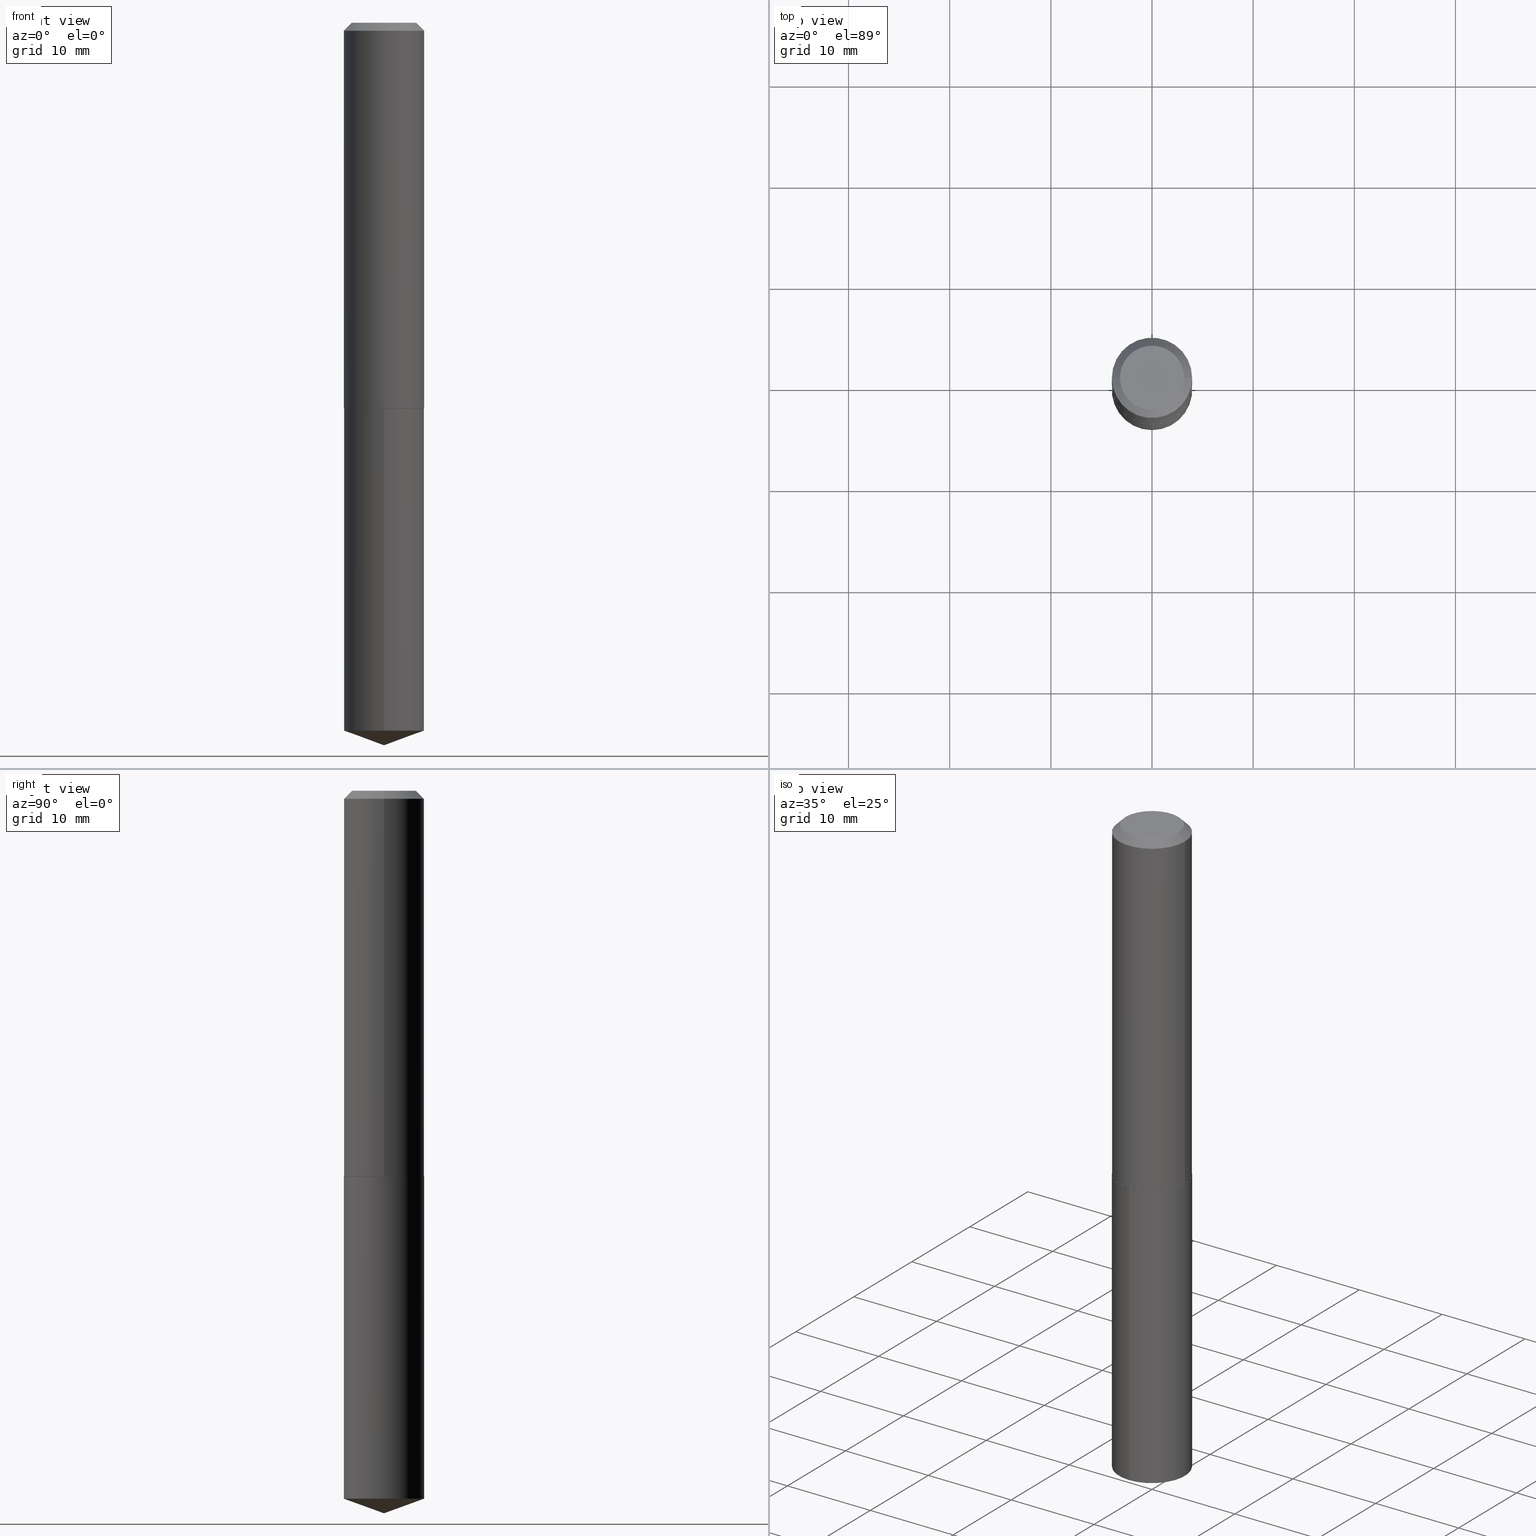
[diagram: canonical four-view strip — front | top / right | iso, engineering-drawing reading convention]
A machine part, canonical four-view strip (front | top / right | iso — engineering-drawing reading convention). The complete STEP part file that produces these views, byte-faithful:
ISO-10303-21;
HEADER;
FILE_DESCRIPTION (( 'STEP AP203' ),
    '1' );
FILE_NAME ('56152.STEP',
    '2024-04-22T20:45:19',
    ( '' ),
    ( '' ),
    'SwSTEP 2.0',
    'SolidWorks 2023',
    '' );
FILE_SCHEMA (( 'CONFIG_CONTROL_DESIGN' ));
ENDSEC;

DATA;
#1 = DIRECTION ( 'NONE',  ( 1.000000000000000000, -6.982962677686267499E-15, 0.000000000000000000 ) ) ;
#2 =( GEOMETRIC_REPRESENTATION_CONTEXT ( 3 ) GLOBAL_UNCERTAINTY_ASSIGNED_CONTEXT ( ( #150 ) ) GLOBAL_UNIT_ASSIGNED_CONTEXT ( ( #387, #148, #91 ) ) REPRESENTATION_CONTEXT ( 'NONE', 'WORKASPACE' ) );
#3 = DIRECTION ( 'NONE',  ( -2.445468806185136597E-29, 3.491481338843145583E-15, 1.000000000000000000 ) ) ;
#4 = ORIENTED_EDGE ( 'NONE', *, *, #236, .T. ) ;
#5 = CARTESIAN_POINT ( 'NONE',  ( 7.642090019328604414E-31, -1.091087918388490513E-16, -0.03125000000000021511 ) ) ;
#6 = ORIENTED_EDGE ( 'NONE', *, *, #54, .F. ) ;
#7 = LINE ( 'NONE', #43, #251 ) ;
#8 = ADVANCED_FACE ( 'NONE', ( #194 ), #287, .T. ) ;
#9 = ORIENTED_EDGE ( 'NONE', *, *, #152, .T. ) ;
#10 = DIRECTION ( 'NONE',  ( 1.000000000000000000, -6.982962677686266711E-15, 4.876176775795936353E-29 ) ) ;
#11 = AXIS2_PLACEMENT_3D ( 'NONE', #370, #97, #272 ) ;
#12 = APPROVAL_PERSON_ORGANIZATION ( #386, #88, #271 ) ;
#13 = DIRECTION ( 'NONE',  ( -2.445534105002635964E-29, 3.491387827219908740E-15, 1.000000000000000000 ) ) ;
#14 = CARTESIAN_POINT ( 'NONE',  ( -1.167985862904640673E-47, 1.667574263899824362E-33, 4.776122516674691392E-19 ) ) ;
#15 = ORIENTED_EDGE ( 'NONE', *, *, #58, .T. ) ;
#16 = CARTESIAN_POINT ( 'NONE',  ( -1.091087918388411726E-15, -0.1562500000000096034, -2.755629650895905058 ) ) ;
#17 = AXIS2_PLACEMENT_3D ( 'NONE', #169, #223, #73 ) ;
#18 = VERTEX_POINT ( 'NONE', #85 ) ;
#19 = DIRECTION ( 'NONE',  ( 0.7071067811866199593, -2.468850131083015945E-15, 0.7071067811864750752 ) ) ;
#20 = ORIENTED_EDGE ( 'NONE', *, *, #294, .T. ) ;
#21 = FACE_OUTER_BOUND ( 'NONE', #47, .T. ) ;
#22 = LINE ( 'NONE', #358, #219 ) ;
#23 = APPROVAL_ROLE ( '' ) ;
#24 = CIRCLE ( 'NONE', #255, 0.1562500000000000000 ) ;
#25 = LOCAL_TIME ( 16, 45, 19.00000000000000000, #359 ) ;
#26 = PERSON_AND_ORGANIZATION_ROLE ( 'design_supplier' ) ;
#27 = APPROVAL_DATE_TIME ( #300, #354 ) ;
#28 = DATE_AND_TIME ( #146, #327 ) ;
#29 = AXIS2_PLACEMENT_3D ( 'NONE', #5, #66, #375 ) ;
#30 = APPROVAL_STATUS ( 'not_yet_approved' ) ;
#31 = PRODUCT_DEFINITION_FORMATION_WITH_SPECIFIED_SOURCE ( 'ANY', '', #340, .NOT_KNOWN. ) ;
#32 = ADVANCED_BREP_SHAPE_REPRESENTATION ( '56152', ( #318, #321, #376 ), #2 ) ;
#33 = DIRECTION ( 'NONE',  ( -0.7071067811865451302, 2.468850131082231817E-15, -0.7071067811865499042 ) ) ;
#34 = EDGE_CURVE ( 'NONE', #310, #71, #329, .T. ) ;
#35 = CARTESIAN_POINT ( 'NONE',  ( -2.335971725809281346E-47, 3.335148527799648725E-33, 9.552245033349382783E-19 ) ) ;
#36 = CC_DESIGN_PERSON_AND_ORGANIZATION_ASSIGNMENT ( #389, #26, ( #31 ) ) ;
#37 = AXIS2_PLACEMENT_3D ( 'NONE', #313, #245, #183 ) ;
#38 = CARTESIAN_POINT ( 'NONE',  ( -0.1250000000000000000, 9.274247306302067059E-16, 9.552245033286433763E-19 ) ) ;
#39 = ORIENTED_EDGE ( 'NONE', *, *, #213, .T. ) ;
#40 = ADVANCED_FACE ( 'NONE', ( #199 ), #388, .T. ) ;
#41 = CARTESIAN_POINT ( 'NONE',  ( -1.091087918388442491E-15, -0.1562500000000052180, -1.499999999999999556 ) ) ;
#42 = VERTEX_POINT ( 'NONE', #117 ) ;
#43 = CARTESIAN_POINT ( 'NONE',  ( -0.1562500000000001388, 1.110223024625157526E-15, -7.685836078523296765E-30 ) ) ;
#44 = PLANE ( 'NONE',  #108 ) ;
#45 = CC_DESIGN_APPROVAL ( #354, ( #230 ) ) ;
#46 = FACE_OUTER_BOUND ( 'NONE', #348, .T. ) ;
#47 = EDGE_LOOP ( 'NONE', ( #274, #278 ) ) ;
#48 = DIRECTION ( 'NONE',  ( -2.445468806185136597E-29, 3.491481338843145583E-15, 1.000000000000000000 ) ) ;
#49 = VERTEX_POINT ( 'NONE', #296 ) ;
#50 = FACE_OUTER_BOUND ( 'NONE', #319, .T. ) ;
#51 = CIRCLE ( 'NONE', #265, 0.1562500000000000000 ) ;
#52 = CONICAL_SURFACE ( 'NONE', #29, 0.1562500000000000000, 0.7853981633974449483 ) ;
#53 = EDGE_LOOP ( 'NONE', ( #192, #15, #170, #342 ) ) ;
#54 = EDGE_CURVE ( 'NONE', #71, #100, #22, .T. ) ;
#55 = CARTESIAN_POINT ( 'NONE',  ( 0.1250000000000000000, -1.019311926856046176E-15, 9.552245033415540403E-19 ) ) ;
#56 = CARTESIAN_POINT ( 'NONE',  ( 3.666980474874613215E-29, -5.235476267595297462E-15, -1.499500000000000277 ) ) ;
#57 = CC_DESIGN_PERSON_AND_ORGANIZATION_ASSIGNMENT ( #333, #173, ( #340 ) ) ;
#58 = EDGE_CURVE ( 'NONE', #365, #167, #311, .T. ) ;
#59 = AXIS2_PLACEMENT_3D ( 'NONE', #56, #263, #172 ) ;
#60 = PERSON_AND_ORGANIZATION ( #119, #390 ) ;
#61 = CC_DESIGN_PERSON_AND_ORGANIZATION_ASSIGNMENT ( #385, #151, ( #31 ) ) ;
#62 = CALENDAR_DATE ( 2024, 22, 4 ) ;
#63 = AXIS2_PLACEMENT_3D ( 'NONE', #322, #289, #196 ) ;
#64 = CONICAL_SURFACE ( 'NONE', #288, 108.1684023407326691, 1.221730476396029275 ) ;
#65 = DIRECTION ( 'NONE',  ( -6.982962677686266711E-15, -1.000000000000000000, 3.475157955500745458E-15 ) ) ;
#66 = DIRECTION ( 'NONE',  ( 2.445468806185136597E-29, -3.491481338843145583E-15, -1.000000000000000000 ) ) ;
#67 = DIRECTION ( 'NONE',  ( -2.445534105002635684E-29, 3.491387827219909134E-15, 1.000000000000000000 ) ) ;
#68 = ORIENTED_EDGE ( 'NONE', *, *, #332, .T. ) ;
#69 = CARTESIAN_POINT ( 'NONE',  ( 6.738888343796194828E-29, -9.621112086899066152E-15, -2.755629650895905947 ) ) ;
#70 = APPROVAL_PERSON_ORGANIZATION ( #269, #305, #23 ) ;
#71 = VERTEX_POINT ( 'NONE', #211 ) ;
#72 = DIRECTION ( 'NONE',  ( -2.445468806185136877E-29, 3.491481338843145188E-15, 1.000000000000000000 ) ) ;
#73 = DIRECTION ( 'NONE',  ( -6.982962677686265133E-15, -1.000000000000000000, 3.496765431890256920E-15 ) ) ;
#74 = DIRECTION ( 'NONE',  ( 1.000000000000000000, -6.982962677686265922E-15, 4.876176775795935793E-29 ) ) ;
#75 = AXIS2_PLACEMENT_3D ( 'NONE', #69, #132, #215 ) ;
#76 = ORIENTED_EDGE ( 'NONE', *, *, #188, .T. ) ;
#77 = CARTESIAN_POINT ( 'NONE',  ( 3.668203209277704895E-29, -5.237222008264718177E-15, -1.500000000000000222 ) ) ;
#78 = ORIENTED_EDGE ( 'NONE', *, *, #135, .T. ) ;
#79 = FACE_OUTER_BOUND ( 'NONE', #103, .T. ) ;
#80 = EDGE_CURVE ( 'NONE', #250, #109, #249, .T. ) ;
#81 = ORIENTED_EDGE ( 'NONE', *, *, #240, .T. ) ;
#82 = CARTESIAN_POINT ( 'NONE',  ( -8.940290355360066432E-28, 1.276365451385842910E-13, 36.55757874015748143 ) ) ;
#83 = AXIS2_PLACEMENT_3D ( 'NONE', #82, #112, #317 ) ;
#84 = CC_DESIGN_PERSON_AND_ORGANIZATION_ASSIGNMENT ( #298, #205, ( #230 ) ) ;
#85 = CARTESIAN_POINT ( 'NONE',  ( -0.1562500000000000000, -1.562069505091914769E-15, -0.03125000000000021511 ) ) ;
#86 = PERSON_AND_ORGANIZATION_ROLE ( 'classification_officer' ) ;
#87 = SHAPE_DEFINITION_REPRESENTATION ( #90, #32 ) ;
#88 = APPROVAL ( #30, 'UNSPECIFIED' ) ;
#89 = CIRCLE ( 'NONE', #101, 0.1250000000000000000 ) ;
#90 = PRODUCT_DEFINITION_SHAPE ( 'NONE', 'NONE',  #230 ) ;
#91 =( NAMED_UNIT ( * ) SI_UNIT ( $, .STERADIAN. ) SOLID_ANGLE_UNIT ( ) );
#92 = PERSON_AND_ORGANIZATION ( #119, #390 ) ;
#93 = EDGE_CURVE ( 'NONE', #18, #49, #51, .T. ) ;
#94 = ORIENTED_EDGE ( 'NONE', *, *, #363, .T. ) ;
#95 = CC_DESIGN_PERSON_AND_ORGANIZATION_ASSIGNMENT ( #92, #86, ( #154 ) ) ;
#96 = CIRCLE ( 'NONE', #75, 0.1562500000000000000 ) ;
#97 = DIRECTION ( 'NONE',  ( -2.445468806185136597E-29, 3.491481338843145583E-15, 1.000000000000000000 ) ) ;
#98 = CARTESIAN_POINT ( 'NONE',  ( 7.642090019328604414E-31, -1.091087918388490513E-16, -0.03125000000000021511 ) ) ;
#99 = DIRECTION ( 'NONE',  ( 1.000000000000000000, -6.982962677686265133E-15, 0.000000000000000000 ) ) ;
#100 = VERTEX_POINT ( 'NONE', #246 ) ;
#101 = AXIS2_PLACEMENT_3D ( 'NONE', #35, #273, #209 ) ;
#102 = DIRECTION ( 'NONE',  ( 1.000000000000000000, -6.982962677686264344E-15, 0.000000000000000000 ) ) ;
#103 = EDGE_LOOP ( 'NONE', ( #131, #123 ) ) ;
#104 = FACE_OUTER_BOUND ( 'NONE', #285, .T. ) ;
#105 = LINE ( 'NONE', #259, #297 ) ;
#106 = ADVANCED_FACE ( 'NONE', ( #104 ), #344, .T. ) ;
#107 = DIRECTION ( 'NONE',  ( -2.438088387897960049E-29, 3.491481338843145188E-15, 1.000000000000000000 ) ) ;
#108 = AXIS2_PLACEMENT_3D ( 'NONE', #163, #283, #253 ) ;
#109 = VERTEX_POINT ( 'NONE', #126 ) ;
#110 = CARTESIAN_POINT ( 'NONE',  ( 3.668203209277704895E-29, -5.237222008264718177E-15, -1.500000000000000222 ) ) ;
#111 = ORIENTED_EDGE ( 'NONE', *, *, #80, .F. ) ;
#112 = DIRECTION ( 'NONE',  ( -2.445534105002635964E-29, 3.491387827219908740E-15, 1.000000000000000000 ) ) ;
#113 = ORIENTED_EDGE ( 'NONE', *, *, #226, .F. ) ;
#114 = APPROVAL_DATE_TIME ( #28, #305 ) ;
#115 = CIRCLE ( 'NONE', #128, 0.1562500000000000000 ) ;
#116 = APPROVAL_PERSON_ORGANIZATION ( #60, #354, #201 ) ;
#117 = CARTESIAN_POINT ( 'NONE',  ( 0.1557500000000002494, -6.324818445314356710E-15, -1.500000000000000222 ) ) ;
#118 = CALENDAR_DATE ( 2024, 22, 4 ) ;
#119 = PERSON ( 'UNSPECIFIED', 'UNSPECIFIED', 'UNSPECIFIED', ('UNSPECIFIED'), ('UNSPECIFIED'), ('UNSPECIFIED') ) ;
#120 = CIRCLE ( 'NONE', #206, 0.1562500000000002498 ) ;
#121 = LOCAL_TIME ( 16, 45, 19.00000000000000000, #149 ) ;
#122 = SECURITY_CLASSIFICATION_LEVEL ( 'unclassified' ) ;
#123 = ORIENTED_EDGE ( 'NONE', *, *, #244, .T. ) ;
#124 = EDGE_CURVE ( 'NONE', #42, #365, #336, .T. ) ;
#125 = ADVANCED_FACE ( 'NONE', ( #181 ), #52, .T. ) ;
#126 = CARTESIAN_POINT ( 'NONE',  ( -1.091087918388442491E-15, -0.1562500000000052180, -1.499999999999999556 ) ) ;
#127 = AXIS2_PLACEMENT_3D ( 'NONE', #77, #286, #350 ) ;
#128 = AXIS2_PLACEMENT_3D ( 'NONE', #110, #191, #193 ) ;
#129 = DIRECTION ( 'NONE',  ( -2.445534105002635964E-29, 3.491387827219908740E-15, 1.000000000000000000 ) ) ;
#130 = CARTESIAN_POINT ( 'NONE',  ( 3.668203209277704895E-29, -5.237222008264718177E-15, -1.500000000000000222 ) ) ;
#131 = ORIENTED_EDGE ( 'NONE', *, *, #226, .T. ) ;
#132 = DIRECTION ( 'NONE',  ( -2.445534105002635964E-29, 3.491387827219908740E-15, 1.000000000000000000 ) ) ;
#133 = ORIENTED_EDGE ( 'NONE', *, *, #93, .T. ) ;
#134 = CARTESIAN_POINT ( 'NONE',  ( 3.666980474874613215E-29, -5.235476267595297462E-15, -1.499500000000000277 ) ) ;
#135 = EDGE_CURVE ( 'NONE', #365, #42, #270, .T. ) ;
#136 = CYLINDRICAL_SURFACE ( 'NONE', #374, 0.1562500000000001388 ) ;
#137 = CYLINDRICAL_SURFACE ( 'NONE', #316, 0.1562500000000000000 ) ;
#138 = ORIENTED_EDGE ( 'NONE', *, *, #360, .T. ) ;
#139 = FACE_OUTER_BOUND ( 'NONE', #222, .T. ) ;
#140 = APPLICATION_CONTEXT ( 'configuration controlled 3d designs of mechanical parts and assemblies' ) ;
#141 = EDGE_LOOP ( 'NONE', ( #345, #20, #355 ) ) ;
#142 = LINE ( 'NONE', #328, #325 ) ;
#143 = VERTEX_POINT ( 'NONE', #241 ) ;
#144 = CARTESIAN_POINT ( 'NONE',  ( 3.668203209277704895E-29, -5.237222008264718177E-15, -1.500000000000000222 ) ) ;
#145 = CARTESIAN_POINT ( 'NONE',  ( 6.878066388100565428E-29, -9.819528264055993774E-15, -2.812500000000000000 ) ) ;
#146 = CALENDAR_DATE ( 2024, 22, 4 ) ;
#147 = AXIS2_PLACEMENT_3D ( 'NONE', #130, #277, #1 ) ;
#148 =( NAMED_UNIT ( * ) PLANE_ANGLE_UNIT ( ) SI_UNIT ( $, .RADIAN. ) );
#149 = COORDINATED_UNIVERSAL_TIME_OFFSET ( 5, 0, .BEHIND. ) ;
#150 = UNCERTAINTY_MEASURE_WITH_UNIT (LENGTH_MEASURE( 1.000000000000000082E-05 ), #387, 'distance_accuracy_value', 'NONE');
#151 = PERSON_AND_ORGANIZATION_ROLE ( 'creator' ) ;
#152 = EDGE_CURVE ( 'NONE', #167, #18, #7, .T. ) ;
#153 = VECTOR ( 'NONE', #323, 39.37007874015748143 ) ;
#154 = SECURITY_CLASSIFICATION ( '', '', #122 ) ;
#155 = CARTESIAN_POINT ( 'NONE',  ( -0.1562500000000002498, -4.125253242970138555E-15, -1.499500000000000277 ) ) ;
#156 = FACE_OUTER_BOUND ( 'NONE', #352, .T. ) ;
#157 = FACE_OUTER_BOUND ( 'NONE', #141, .T. ) ;
#158 = VERTEX_POINT ( 'NONE', #38 ) ;
#159 = DIRECTION ( 'NONE',  ( -0.7071067811866199593, 7.493145998870616062E-15, 0.7071067811864750752 ) ) ;
#160 = ORIENTED_EDGE ( 'NONE', *, *, #332, .F. ) ;
#161 = CARTESIAN_POINT ( 'NONE',  ( -8.940290355360066432E-28, 1.276365451385842910E-13, 36.55757874015748143 ) ) ;
#162 = CIRCLE ( 'NONE', #367, 0.1250000000000000000 ) ;
#163 = CARTESIAN_POINT ( 'NONE',  ( 3.668203209277704895E-29, -5.237222008264718177E-15, -1.500000000000000222 ) ) ;
#164 = CC_DESIGN_DATE_AND_TIME_ASSIGNMENT ( #267, #334, ( #230 ) ) ;
#165 = ORIENTED_EDGE ( 'NONE', *, *, #188, .F. ) ;
#166 = DIRECTION ( 'NONE',  ( -6.561838499445196907E-15, -0.9396926207859067626, 0.3420201433256733758 ) ) ;
#167 = VERTEX_POINT ( 'NONE', #155 ) ;
#168 = VECTOR ( 'NONE', #159, 39.37007874015748143 ) ;
#169 = CARTESIAN_POINT ( 'NONE',  ( 6.738888343796194828E-29, -9.621112086899066152E-15, -2.755629650895905947 ) ) ;
#170 = ORIENTED_EDGE ( 'NONE', *, *, #236, .F. ) ;
#171 = PLANE ( 'NONE',  #299 ) ;
#172 = DIRECTION ( 'NONE',  ( 1.000000000000000000, -6.982962677686264344E-15, 0.000000000000000000 ) ) ;
#173 = PERSON_AND_ORGANIZATION_ROLE ( 'design_owner' ) ;
#174 = VECTOR ( 'NONE', #383, 39.37007874015748143 ) ;
#175 = APPROVAL_STATUS ( 'not_yet_approved' ) ;
#176 = ORIENTED_EDGE ( 'NONE', *, *, #363, .F. ) ;
#177 = ADVANCED_FACE ( 'NONE', ( #157 ), #64, .T. ) ;
#178 = CALENDAR_DATE ( 2024, 22, 4 ) ;
#179 = DATE_AND_TIME ( #62, #207 ) ;
#180 = LINE ( 'NONE', #306, #304 ) ;
#181 = FACE_OUTER_BOUND ( 'NONE', #326, .T. ) ;
#182 = EDGE_CURVE ( 'NONE', #49, #18, #24, .T. ) ;
#183 = DIRECTION ( 'NONE',  ( -6.982962677686265133E-15, -1.000000000000000000, 3.496765431890256920E-15 ) ) ;
#184 = ORIENTED_EDGE ( 'NONE', *, *, #124, .F. ) ;
#185 = CIRCLE ( 'NONE', #357, 0.1562500000000002498 ) ;
#186 = DIRECTION ( 'NONE',  ( -2.445534105002635684E-29, 3.491387827219909134E-15, 1.000000000000000000 ) ) ;
#187 = ORIENTED_EDGE ( 'NONE', *, *, #80, .T. ) ;
#188 = EDGE_CURVE ( 'NONE', #167, #143, #185, .T. ) ;
#189 = CYLINDRICAL_SURFACE ( 'NONE', #237, 0.1562500000000001388 ) ;
#190 = LINE ( 'NONE', #314, #198 ) ;
#191 = DIRECTION ( 'NONE',  ( -2.445534105002635964E-29, 3.491387827219908740E-15, 1.000000000000000000 ) ) ;
#192 = ORIENTED_EDGE ( 'NONE', *, *, #124, .T. ) ;
#193 = DIRECTION ( 'NONE',  ( -6.982962677686265133E-15, -1.000000000000000000, 3.496765431890256920E-15 ) ) ;
#194 = FACE_OUTER_BOUND ( 'NONE', #53, .T. ) ;
#195 = CARTESIAN_POINT ( 'NONE',  ( 7.642090019328604414E-31, -1.091087918388490513E-16, -0.03125000000000021511 ) ) ;
#196 = DIRECTION ( 'NONE',  ( 1.000000000000000000, -6.982962677686264344E-15, 0.000000000000000000 ) ) ;
#197 = DIRECTION ( 'NONE',  ( 0.7071067811865451302, -7.319954787623248157E-15, -0.7071067811865499042 ) ) ;
#198 = VECTOR ( 'NONE', #19, 39.37007874015748143 ) ;
#199 = FACE_OUTER_BOUND ( 'NONE', #292, .T. ) ;
#200 = DIRECTION ( 'NONE',  ( 1.000000000000000000, 0.000000000000000000, 0.000000000000000000 ) ) ;
#201 = APPROVAL_ROLE ( '' ) ;
#202 = APPLICATION_PROTOCOL_DEFINITION ( 'international standard', 'config_control_design', 1994, #140 ) ;
#203 = LOCAL_TIME ( 16, 45, 19.00000000000000000, #330 ) ;
#204 = MECHANICAL_CONTEXT ( 'NONE', #140, 'mechanical' ) ;
#205 = PERSON_AND_ORGANIZATION_ROLE ( 'creator' ) ;
#206 = AXIS2_PLACEMENT_3D ( 'NONE', #134, #252, #335 ) ;
#207 = LOCAL_TIME ( 16, 45, 19.00000000000000000, #361 ) ;
#208 = DIRECTION ( 'NONE',  ( -2.445468806185136597E-29, 3.491481338843145583E-15, 1.000000000000000000 ) ) ;
#209 = DIRECTION ( 'NONE',  ( 1.000000000000000000, -6.982962677686266711E-15, 4.876147531933569011E-29 ) ) ;
#210 = ORIENTED_EDGE ( 'NONE', *, *, #135, .F. ) ;
#211 = CARTESIAN_POINT ( 'NONE',  ( 1.110223024625223791E-15, 0.1562499999999903411, -2.755629650895906391 ) ) ;
#212 = ORIENTED_EDGE ( 'NONE', *, *, #294, .F. ) ;
#213 = EDGE_CURVE ( 'NONE', #250, #71, #96, .T. ) ;
#214 = VECTOR ( 'NONE', #67, 39.37007874015748143 ) ;
#215 = DIRECTION ( 'NONE',  ( -6.982962677686265133E-15, -1.000000000000000000, 3.496765431890256920E-15 ) ) ;
#216 = ORIENTED_EDGE ( 'NONE', *, *, #34, .T. ) ;
#217 = CARTESIAN_POINT ( 'NONE',  ( 3.668203209277704895E-29, -5.237222008264718177E-15, -1.500000000000000222 ) ) ;
#218 = CARTESIAN_POINT ( 'NONE',  ( 0.1562500000000001388, -1.091087918388480160E-15, 7.619026212181157383E-30 ) ) ;
#219 = VECTOR ( 'NONE', #186, 39.37007874015748143 ) ;
#220 = LINE ( 'NONE', #218, #153 ) ;
#221 = PRODUCT_RELATED_PRODUCT_CATEGORY ( 'detail', '', ( #340 ) ) ;
#222 = EDGE_LOOP ( 'NONE', ( #184, #210 ) ) ;
#223 = DIRECTION ( 'NONE',  ( -2.445534105002635964E-29, 3.491387827219908740E-15, 1.000000000000000000 ) ) ;
#224 = ORIENTED_EDGE ( 'NONE', *, *, #93, .F. ) ;
#225 = CARTESIAN_POINT ( 'NONE',  ( 6.878064670319913527E-29, -9.819528264055993774E-15, -2.812500000000000000 ) ) ;
#226 = EDGE_CURVE ( 'NONE', #158, #261, #162, .T. ) ;
#227 = EDGE_LOOP ( 'NONE', ( #212, #216, #312 ) ) ;
#228 = APPLICATION_PROTOCOL_DEFINITION ( 'international standard', 'config_control_design', 1994, #324 ) ;
#229 = CIRCLE ( 'NONE', #127, 0.1562500000000000000 ) ;
#230 = PRODUCT_DEFINITION ( 'UNKNOWN', '', #31, #338 ) ;
#231 = APPROVAL_DATE_TIME ( #264, #88 ) ;
#232 = CARTESIAN_POINT ( 'NONE',  ( 0.000000000000000000, 0.000000000000000000, 0.000000000000000000 ) ) ;
#233 = ADVANCED_FACE ( 'NONE', ( #156 ), #189, .T. ) ;
#234 = DIRECTION ( 'NONE',  ( 0.000000000000000000, 0.000000000000000000, 1.000000000000000000 ) ) ;
#235 = CLOSED_SHELL ( 'NONE', ( #125, #343, #8, #276, #40, #233, #290, #303 ) ) ;
#236 = EDGE_CURVE ( 'NONE', #143, #167, #120, .T. ) ;
#237 = AXIS2_PLACEMENT_3D ( 'NONE', #339, #3, #10 ) ;
#238 = ORIENTED_EDGE ( 'NONE', *, *, #182, .F. ) ;
#239 = EDGE_LOOP ( 'NONE', ( #39, #381, #280, #111 ) ) ;
#240 = EDGE_CURVE ( 'NONE', #158, #18, #180, .T. ) ;
#241 = CARTESIAN_POINT ( 'NONE',  ( 0.1562500000000002498, -6.326564185983777424E-15, -1.499500000000000277 ) ) ;
#242 = CLOSED_SHELL ( 'NONE', ( #247, #260, #177, #106, #368 ) ) ;
#243 = CONICAL_SURFACE ( 'NONE', #362, 0.1562500000000000000, 0.7853981633974449483 ) ;
#244 = EDGE_CURVE ( 'NONE', #261, #158, #89, .T. ) ;
#245 = DIRECTION ( 'NONE',  ( -2.445534105002635964E-29, 3.491387827219908740E-15, 1.000000000000000000 ) ) ;
#246 = CARTESIAN_POINT ( 'NONE',  ( 1.110223024625224185E-15, 0.1562499999999947820, -1.500000000000000666 ) ) ;
#247 = ADVANCED_FACE ( 'NONE', ( #257 ), #137, .T. ) ;
#248 = ORIENTED_EDGE ( 'NONE', *, *, #58, .F. ) ;
#249 = LINE ( 'NONE', #41, #214 ) ;
#250 = VERTEX_POINT ( 'NONE', #16 ) ;
#251 = VECTOR ( 'NONE', #72, 39.37007874015748143 ) ;
#252 = DIRECTION ( 'NONE',  ( -2.445468806185136597E-29, 3.491481338843145583E-15, 1.000000000000000000 ) ) ;
#253 = DIRECTION ( 'NONE',  ( 6.982962677686265922E-15, 1.000000000000000000, -3.491387827219909134E-15 ) ) ;
#254 = EDGE_CURVE ( 'NONE', #100, #109, #229, .T. ) ;
#255 = AXIS2_PLACEMENT_3D ( 'NONE', #369, #372, #99 ) ;
#256 = ORIENTED_EDGE ( 'NONE', *, *, #308, .T. ) ;
#257 = FACE_OUTER_BOUND ( 'NONE', #239, .T. ) ;
#258 = ORIENTED_EDGE ( 'NONE', *, *, #244, .F. ) ;
#259 = CARTESIAN_POINT ( 'NONE',  ( 0.1562500000000000000, -1.181061603990650907E-15, -0.03125000000000021511 ) ) ;
#260 = ADVANCED_FACE ( 'NONE', ( #380 ), #275, .T. ) ;
#261 = VERTEX_POINT ( 'NONE', #55 ) ;
#262 = CARTESIAN_POINT ( 'NONE',  ( 0.000000000000000000, 0.000000000000000000, 0.000000000000000000 ) ) ;
#263 = DIRECTION ( 'NONE',  ( -2.445468806185136597E-29, 3.491481338843145583E-15, 1.000000000000000000 ) ) ;
#264 = DATE_AND_TIME ( #118, #203 ) ;
#265 = AXIS2_PLACEMENT_3D ( 'NONE', #98, #279, #309 ) ;
#266 = CC_DESIGN_APPROVAL ( #305, ( #31 ) ) ;
#267 = DATE_AND_TIME ( #364, #121 ) ;
#268 = CC_DESIGN_DATE_AND_TIME_ASSIGNMENT ( #179, #302, ( #154 ) ) ;
#269 = PERSON_AND_ORGANIZATION ( #119, #390 ) ;
#270 = CIRCLE ( 'NONE', #11, 0.1557500000000002494 ) ;
#271 = APPROVAL_ROLE ( '' ) ;
#272 = DIRECTION ( 'NONE',  ( 1.000000000000000000, -6.982962677686267499E-15, 0.000000000000000000 ) ) ;
#273 = DIRECTION ( 'NONE',  ( -2.445468806185136597E-29, 3.491481338843145583E-15, 1.000000000000000000 ) ) ;
#274 = ORIENTED_EDGE ( 'NONE', *, *, #315, .T. ) ;
#275 = CONICAL_SURFACE ( 'NONE', #83, 108.1684023407326691, 1.221730476396029275 ) ;
#276 = ADVANCED_FACE ( 'NONE', ( #139 ), #382, .F. ) ;
#277 = DIRECTION ( 'NONE',  ( -2.445468806185136597E-29, 3.491481338843145583E-15, 1.000000000000000000 ) ) ;
#278 = ORIENTED_EDGE ( 'NONE', *, *, #254, .T. ) ;
#279 = DIRECTION ( 'NONE',  ( -2.445468806185136597E-29, 3.491481338843145583E-15, 1.000000000000000000 ) ) ;
#280 = ORIENTED_EDGE ( 'NONE', *, *, #315, .F. ) ;
#281 = DIRECTION ( 'NONE',  ( 1.000000000000000000, -6.982962677686266711E-15, 4.876147531933569011E-29 ) ) ;
#282 = AXIS2_PLACEMENT_3D ( 'NONE', #217, #107, #74 ) ;
#283 = DIRECTION ( 'NONE',  ( 2.445534105002635404E-29, -3.491387827219909134E-15, -1.000000000000000000 ) ) ;
#284 =( LENGTH_UNIT ( ) NAMED_UNIT ( * ) SI_UNIT ( $, .METRE. ) );
#285 = EDGE_LOOP ( 'NONE', ( #6, #256, #187, #373 ) ) ;
#286 = DIRECTION ( 'NONE',  ( -2.445534105002635964E-29, 3.491387827219908740E-15, 1.000000000000000000 ) ) ;
#287 = CONICAL_SURFACE ( 'NONE', #63, 0.1562500000000002498, 0.7853981633975507526 ) ;
#288 = AXIS2_PLACEMENT_3D ( 'NONE', #161, #129, #65 ) ;
#289 = DIRECTION ( 'NONE',  ( -2.445468806185136597E-29, 3.491481338843145583E-15, 1.000000000000000000 ) ) ;
#290 = ADVANCED_FACE ( 'NONE', ( #50 ), #243, .T. ) ;
#291 = DIRECTION ( 'NONE',  ( 1.000000000000000000, -6.982962677686266711E-15, 4.876176775795936353E-29 ) ) ;
#292 = EDGE_LOOP ( 'NONE', ( #248, #78, #138, #165 ) ) ;
#293 = CARTESIAN_POINT ( 'NONE',  ( -0.1557500000000002494, -4.127902470144249756E-15, -1.500000000000000222 ) ) ;
#294 = EDGE_CURVE ( 'NONE', #310, #250, #142, .T. ) ;
#295 = DIMENSIONAL_EXPONENTS ( 1.000000000000000000, 0.000000000000000000, 0.000000000000000000, 0.000000000000000000, 0.000000000000000000, 0.000000000000000000, 0.000000000000000000 ) ;
#296 = CARTESIAN_POINT ( 'NONE',  ( 0.1562500000000000000, -1.200196710227328077E-15, -0.03125000000000021511 ) ) ;
#297 = VECTOR ( 'NONE', #197, 39.37007874015748143 ) ;
#298 = PERSON_AND_ORGANIZATION ( #119, #390 ) ;
#299 = AXIS2_PLACEMENT_3D ( 'NONE', #14, #349, #378 ) ;
#300 = DATE_AND_TIME ( #178, #25 ) ;
#301 = APPROVAL_STATUS ( 'not_yet_approved' ) ;
#302 = DATE_TIME_ROLE ( 'classification_date' ) ;
#303 = ADVANCED_FACE ( 'NONE', ( #79 ), #171, .F. ) ;
#304 = VECTOR ( 'NONE', #33, 39.37007874015748143 ) ;
#305 = APPROVAL ( #301, 'UNSPECIFIED' ) ;
#306 = CARTESIAN_POINT ( 'NONE',  ( -0.1562500000000000000, 9.819791265496300729E-16, -0.03125000000000021511 ) ) ;
#307 = CARTESIAN_POINT ( 'NONE',  ( 3.666980474874613215E-29, -5.235476267595297462E-15, -1.499500000000000277 ) ) ;
#308 = EDGE_CURVE ( 'NONE', #71, #250, #346, .T. ) ;
#309 = DIRECTION ( 'NONE',  ( 1.000000000000000000, -6.982962677686265133E-15, 0.000000000000000000 ) ) ;
#310 = VERTEX_POINT ( 'NONE', #225 ) ;
#311 = LINE ( 'NONE', #341, #168 ) ;
#312 = ORIENTED_EDGE ( 'NONE', *, *, #213, .F. ) ;
#313 = CARTESIAN_POINT ( 'NONE',  ( 3.668203209277704895E-29, -5.237222008264718177E-15, -1.500000000000000222 ) ) ;
#314 = CARTESIAN_POINT ( 'NONE',  ( 0.1562500000000002498, -6.326564185983777424E-15, -1.499500000000000277 ) ) ;
#315 = EDGE_CURVE ( 'NONE', #109, #100, #115, .T. ) ;
#316 = AXIS2_PLACEMENT_3D ( 'NONE', #144, #13, #320 ) ;
#317 = DIRECTION ( 'NONE',  ( -6.982962677686266711E-15, -1.000000000000000000, 3.475157955500745458E-15 ) ) ;
#318 = MANIFOLD_SOLID_BREP ( 'Body-Move/Copy2[1]', #242 ) ;
#319 = EDGE_LOOP ( 'NONE', ( #176, #113, #81, #133 ) ) ;
#320 = DIRECTION ( 'NONE',  ( -6.982962677686265133E-15, -1.000000000000000000, 3.496765431890256920E-15 ) ) ;
#321 = MANIFOLD_SOLID_BREP ( 'Body-Move/Copy2[2]', #235 ) ;
#322 = CARTESIAN_POINT ( 'NONE',  ( 3.666980474874613215E-29, -5.235476267595297462E-15, -1.499500000000000277 ) ) ;
#323 = DIRECTION ( 'NONE',  ( -2.445468806185136877E-29, 3.491481338843145188E-15, 1.000000000000000000 ) ) ;
#324 = APPLICATION_CONTEXT ( 'configuration controlled 3d designs of mechanical parts and assemblies' ) ;
#325 = VECTOR ( 'NONE', #166, 39.37007874015748854 ) ;
#326 = EDGE_LOOP ( 'NONE', ( #258, #94, #379, #371 ) ) ;
#327 = LOCAL_TIME ( 16, 45, 19.00000000000000000, #331 ) ;
#328 = CARTESIAN_POINT ( 'NONE',  ( 6.877868773867415705E-29, -9.819808798925704697E-15, -2.812500000000000000 ) ) ;
#329 = LINE ( 'NONE', #145, #174 ) ;
#330 = COORDINATED_UNIVERSAL_TIME_OFFSET ( 5, 0, .BEHIND. ) ;
#331 = COORDINATED_UNIVERSAL_TIME_OFFSET ( 5, 0, .BEHIND. ) ;
#332 = EDGE_CURVE ( 'NONE', #143, #49, #220, .T. ) ;
#333 = PERSON_AND_ORGANIZATION ( #119, #390 ) ;
#334 = DATE_TIME_ROLE ( 'creation_date' ) ;
#335 = DIRECTION ( 'NONE',  ( 1.000000000000000000, -6.982962677686264344E-15, 0.000000000000000000 ) ) ;
#336 = CIRCLE ( 'NONE', #147, 0.1557500000000002494 ) ;
#337 = CC_DESIGN_APPROVAL ( #88, ( #154 ) ) ;
#338 = DESIGN_CONTEXT ( 'detailed design', #324, 'design' ) ;
#339 = CARTESIAN_POINT ( 'NONE',  ( 0.000000000000000000, 0.000000000000000000, 0.000000000000000000 ) ) ;
#340 = PRODUCT ( '56152', '56152', '', ( #204 ) ) ;
#341 = CARTESIAN_POINT ( 'NONE',  ( -0.1562500000000002498, -4.125253242970138555E-15, -1.499500000000000277 ) ) ;
#342 = ORIENTED_EDGE ( 'NONE', *, *, #360, .F. ) ;
#343 = ADVANCED_FACE ( 'NONE', ( #46 ), #136, .T. ) ;
#344 = CYLINDRICAL_SURFACE ( 'NONE', #37, 0.1562500000000000000 ) ;
#345 = ORIENTED_EDGE ( 'NONE', *, *, #34, .F. ) ;
#346 = CIRCLE ( 'NONE', #17, 0.1562500000000000000 ) ;
#347 = CARTESIAN_POINT ( 'NONE',  ( -2.335971725809281346E-47, 3.335148527799648725E-33, 9.552245033349382783E-19 ) ) ;
#348 = EDGE_LOOP ( 'NONE', ( #4, #9, #238, #160 ) ) ;
#349 = DIRECTION ( 'NONE',  ( 2.438088387897960049E-29, -3.491481338843145188E-15, -1.000000000000000000 ) ) ;
#350 = DIRECTION ( 'NONE',  ( -6.982962677686265133E-15, -1.000000000000000000, 3.496765431890256920E-15 ) ) ;
#351 = LENGTH_MEASURE_WITH_UNIT ( LENGTH_MEASURE( 0.02539999999999999897 ), #284 );
#352 = EDGE_LOOP ( 'NONE', ( #377, #76, #68, #224 ) ) ;
#353 = DIRECTION ( 'NONE',  ( -1.000000000000000000, 6.982962677686266711E-15, 0.000000000000000000 ) ) ;
#354 = APPROVAL ( #175, 'UNSPECIFIED' ) ;
#355 = ORIENTED_EDGE ( 'NONE', *, *, #308, .F. ) ;
#356 = DIRECTION ( 'NONE',  ( 2.445468806185136597E-29, -3.491481338843145583E-15, -1.000000000000000000 ) ) ;
#357 = AXIS2_PLACEMENT_3D ( 'NONE', #307, #366, #102 ) ;
#358 = CARTESIAN_POINT ( 'NONE',  ( 1.110223024625193025E-15, 0.1562499999999947820, -1.500000000000000666 ) ) ;
#359 = COORDINATED_UNIVERSAL_TIME_OFFSET ( 5, 0, .BEHIND. ) ;
#360 = EDGE_CURVE ( 'NONE', #42, #143, #190, .T. ) ;
#361 = COORDINATED_UNIVERSAL_TIME_OFFSET ( 5, 0, .BEHIND. ) ;
#362 = AXIS2_PLACEMENT_3D ( 'NONE', #195, #356, #353 ) ;
#363 = EDGE_CURVE ( 'NONE', #261, #49, #105, .T. ) ;
#364 = CALENDAR_DATE ( 2024, 22, 4 ) ;
#365 = VERTEX_POINT ( 'NONE', #293 ) ;
#366 = DIRECTION ( 'NONE',  ( -2.445468806185136597E-29, 3.491481338843145583E-15, 1.000000000000000000 ) ) ;
#367 = AXIS2_PLACEMENT_3D ( 'NONE', #347, #208, #281 ) ;
#368 = ADVANCED_FACE ( 'NONE', ( #21 ), #44, .F. ) ;
#369 = CARTESIAN_POINT ( 'NONE',  ( 7.642090019328604414E-31, -1.091087918388490513E-16, -0.03125000000000021511 ) ) ;
#370 = CARTESIAN_POINT ( 'NONE',  ( 3.668203209277704895E-29, -5.237222008264718177E-15, -1.500000000000000222 ) ) ;
#371 = ORIENTED_EDGE ( 'NONE', *, *, #240, .F. ) ;
#372 = DIRECTION ( 'NONE',  ( -2.445468806185136597E-29, 3.491481338843145583E-15, 1.000000000000000000 ) ) ;
#373 = ORIENTED_EDGE ( 'NONE', *, *, #254, .F. ) ;
#374 = AXIS2_PLACEMENT_3D ( 'NONE', #262, #48, #291 ) ;
#375 = DIRECTION ( 'NONE',  ( -1.000000000000000000, 6.982962677686266711E-15, 0.000000000000000000 ) ) ;
#376 = AXIS2_PLACEMENT_3D ( 'NONE', #232, #234, #200 ) ;
#377 = ORIENTED_EDGE ( 'NONE', *, *, #152, .F. ) ;
#378 = DIRECTION ( 'NONE',  ( -1.000000000000000000, 6.982962677686265922E-15, -4.876176775795935793E-29 ) ) ;
#379 = ORIENTED_EDGE ( 'NONE', *, *, #182, .T. ) ;
#380 = FACE_OUTER_BOUND ( 'NONE', #227, .T. ) ;
#381 = ORIENTED_EDGE ( 'NONE', *, *, #54, .T. ) ;
#382 = PLANE ( 'NONE',  #282 ) ;
#383 = DIRECTION ( 'NONE',  ( 6.676917655467964185E-15, 0.9396926207859090940, 0.3420201433256668255 ) ) ;
#384 = CC_DESIGN_SECURITY_CLASSIFICATION ( #154, ( #31 ) ) ;
#385 = PERSON_AND_ORGANIZATION ( #119, #390 ) ;
#386 = PERSON_AND_ORGANIZATION ( #119, #390 ) ;
#387 =( CONVERSION_BASED_UNIT ( 'INCH', #351 ) LENGTH_UNIT ( ) NAMED_UNIT ( #295 ) );
#388 = CONICAL_SURFACE ( 'NONE', #59, 0.1562500000000002498, 0.7853981633975507526 ) ;
#389 = PERSON_AND_ORGANIZATION ( #119, #390 ) ;
#390 = ORGANIZATION ( 'UNSPECIFIED', 'UNSPECIFIED', '' ) ;
ENDSEC;
END-ISO-10303-21;
